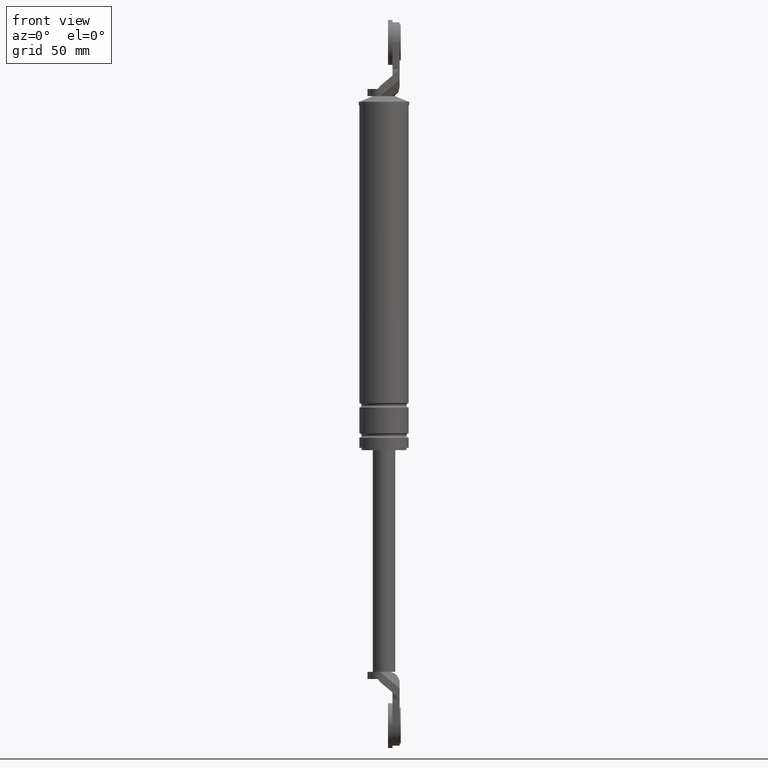
[diagram: clean part render]
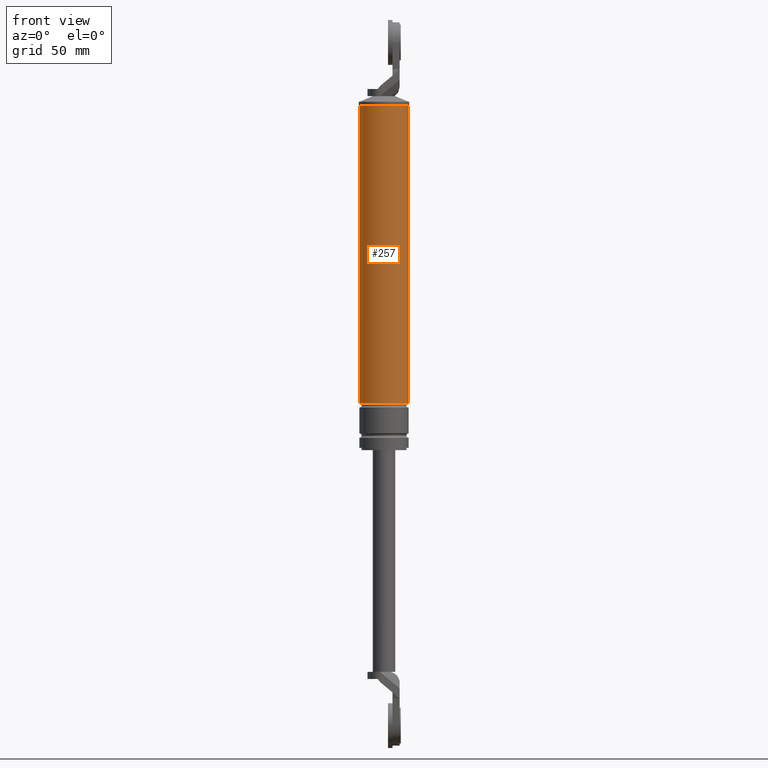
[diagram: same view with one face highlighted and labeled with its STEP entity id]
A machine part, front view. The second image highlights one B-rep face of the part: STEP entity #257.
In plain terms, the highlighted cylindrical surface (edge-blend (fillet) strip) has radius 11 mm, axis along (0, 0, 1).
Its self-contained STEP definition (entity closure, byte-faithful):
#257=ADVANCED_FACE('',(#827),#826,.T.);
#826=CYLINDRICAL_SURFACE('',#1581,1.10000000000E+001);
#827=FACE_OUTER_BOUND('',#1582,.T.);
#1578=CARTESIAN_POINT('',(0.00000000000E+000,3.58204186421E-014,0.00000000000E+000));
#1579=DIRECTION('',(-0.00000000000E+000,-0.00000000000E+000,1.00000000000E+000));
#1580=DIRECTION('',(1.00000000000E+000,0.00000000000E+000,0.00000000000E+000));
#1581=AXIS2_PLACEMENT_3D('',#1578,#1579,#1580);
#1582=EDGE_LOOP('',(#2026,#2027,#2028,#2029));
#2026=ORIENTED_EDGE('',*,*,#2292,.F.);
#2027=ORIENTED_EDGE('',*,*,#2305,.T.);
#2028=ORIENTED_EDGE('',*,*,#2273,.T.);
#2029=ORIENTED_EDGE('',*,*,#2306,.F.);
#2273=EDGE_CURVE('',#3008,#3009,#3010,.T.);
#2292=EDGE_CURVE('',#3097,#3096,#3130,.T.);
#2305=EDGE_CURVE('',#3097,#3008,#3212,.T.);
#2306=EDGE_CURVE('',#3096,#3009,#3218,.T.);
#3008=VERTEX_POINT('',#4107);
#3009=VERTEX_POINT('',#4108);
#3010=CIRCLE('',#4112,1.10000000000E+001);
#3096=VERTEX_POINT('',#4155);
#3097=VERTEX_POINT('',#4156);
#3130=CIRCLE('',#4184,1.10000000000E+001);
#3212=(BOUNDED_CURVE() B_SPLINE_CURVE(1,(#4227,#4228),.UNSPECIFIED.,.F.,.F.) B_SPLINE_CURVE_WITH_KNOTS((2,2),(6.53594771397E-002,9.34640522737E-001),.UNSPECIFIED.) CURVE() GEOMETRIC_REPRESENTATION_ITEM() RATIONAL_B_SPLINE_CURVE((1.00000000000E+000,1.00000000000E+000)) REPRESENTATION_ITEM('') );
#3218=(BOUNDED_CURVE() B_SPLINE_CURVE(1,(#4229,#4230),.UNSPECIFIED.,.F.,.F.) B_SPLINE_CURVE_WITH_KNOTS((2,2),(6.53594771242E-002,9.34640522876E-001),.UNSPECIFIED.) CURVE() GEOMETRIC_REPRESENTATION_ITEM() RATIONAL_B_SPLINE_CURVE((7.50000000000E-001,7.50000000000E-001)) REPRESENTATION_ITEM('') );
#4107=CARTESIAN_POINT('',(1.10000000000E+001,3.61192557345E-014,8.49999850000E+001));
#4108=CARTESIAN_POINT('',(-1.10000000000E+001,3.58204186421E-014,8.49999850000E+001));
#4109=CARTESIAN_POINT('',(0.00000000000E+000,3.58204186421E-014,8.49999850000E+001));
#4110=DIRECTION('',(-0.00000000000E+000,0.00000000000E+000,-1.00000000000E+000));
#4111=DIRECTION('',(-1.00000000000E+000,-1.22460635382E-016,0.00000000000E+000));
#4112=AXIS2_PLACEMENT_3D('',#4109,#4110,#4111);
#4155=CARTESIAN_POINT('',(-1.10000000000E+001,3.58204186421E-014,-4.80000150000E+001));
#4156=CARTESIAN_POINT('',(1.10000000000E+001,3.61192557345E-014,-4.80000150000E+001));
#4181=CARTESIAN_POINT('',(0.00000000000E+000,3.58204186421E-014,-4.80000150000E+001));
#4182=DIRECTION('',(-0.00000000000E+000,0.00000000000E+000,-1.00000000000E+000));
#4183=DIRECTION('',(-1.00000000000E+000,-1.22460635382E-016,0.00000000000E+000));
#4184=AXIS2_PLACEMENT_3D('',#4181,#4182,#4183);
#4227=CARTESIAN_POINT('',(1.10000000000E+001,3.58204186421E-014,-4.80000149976E+001));
#4228=CARTESIAN_POINT('',(1.10000000000E+001,3.58204186421E-014,8.49999849788E+001));
#4229=CARTESIAN_POINT('',(-1.10000000000E+001,3.55271367880E-014,-4.80000150000E+001));
#4230=CARTESIAN_POINT('',(-1.10000000000E+001,3.55271367880E-014,8.49999850000E+001));